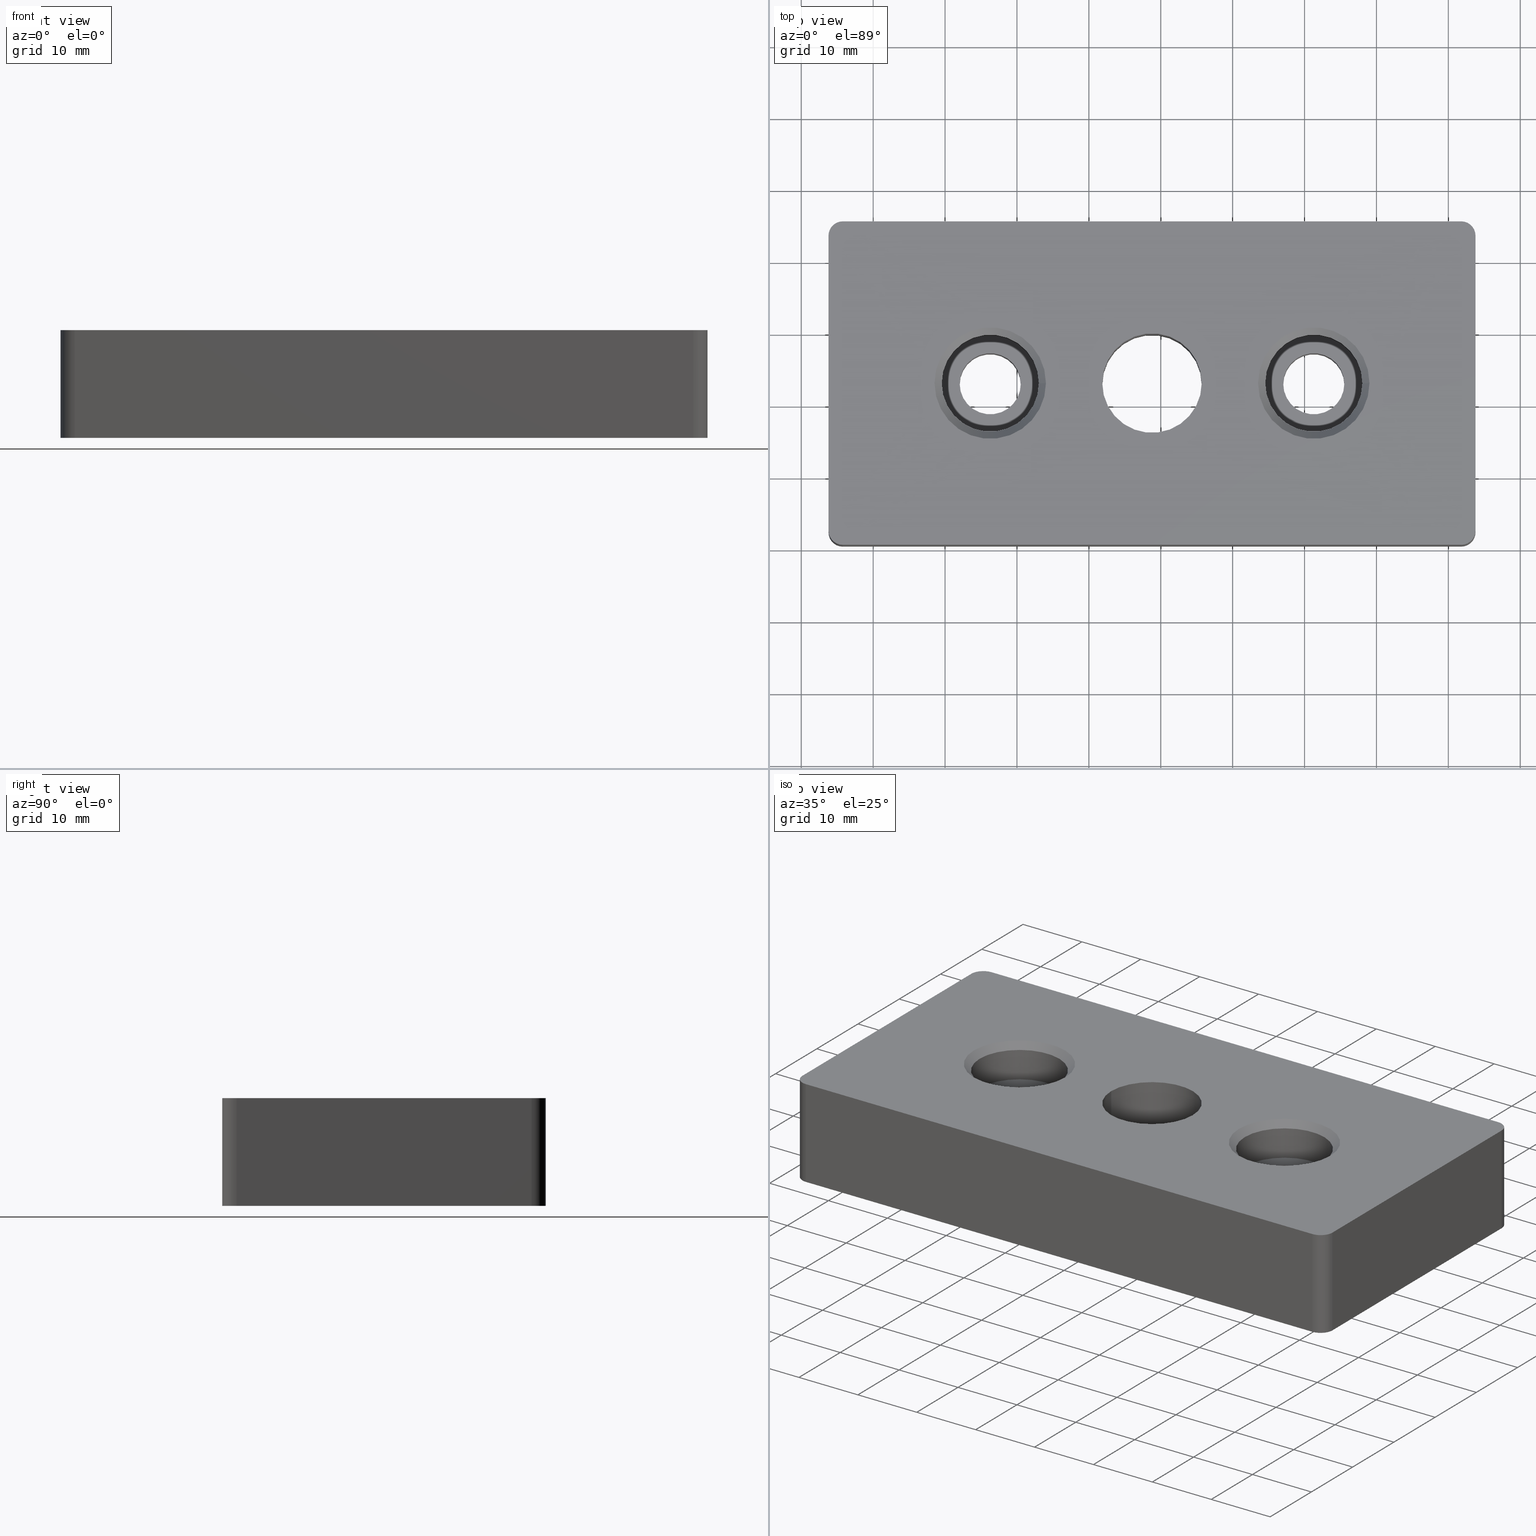
[diagram: canonical four-view strip — front | top / right | iso, engineering-drawing reading convention]
A machine part, canonical four-view strip (front | top / right | iso — engineering-drawing reading convention). The complete STEP part file that produces these views, byte-faithful:
ISO-10303-21;
HEADER;
/* Generated by software containing ST-Developer
 * from STEP Tools, Inc. (www.steptools.com) 
 */

FILE_DESCRIPTION(
/* description */ ('PIASTRA FISS. PIEDI M12 45X90'),
/* implementation_level */ '2;1');

FILE_NAME(
/* name */ 
'Q:\\Catalogo\\2_Accessori Dierre\\Per Download Web e catalogo cartace
o\\CATALOGO PIEDI E SOSTEGNI\\PAGINA 45\\DPSXX0000553.stp',
/* time_stamp */ '2018-11-09T11:38:37+01:00',
/* author */ ('fzagni'),
/* organization */ (''),
/* preprocessor_version */ 'ST-DEVELOPER v16.1',
/* originating_system */ 'Autodesk Inventor 2016',
/* authorisation */ '');

FILE_SCHEMA (('AUTOMOTIVE_DESIGN { 1 0 10303 214 3 1 1 }'));
ENDSEC;

DATA;
#10=MECHANICAL_DESIGN_GEOMETRIC_PRESENTATION_REPRESENTATION('',(#13),#533);
#11=SHAPE_REPRESENTATION_RELATIONSHIP('SRR','None',#542,#12);
#12=ADVANCED_BREP_SHAPE_REPRESENTATION('',(#14),#532);
#13=STYLED_ITEM('',(#552),#14);
#14=MANIFOLD_SOLID_BREP('3710',#309);
#15=CYLINDRICAL_SURFACE('',#321,6.75);
#16=CYLINDRICAL_SURFACE('',#325,6.75);
#17=CYLINDRICAL_SURFACE('',#327,6.9175);
#18=CYLINDRICAL_SURFACE('',#329,2.);
#19=CYLINDRICAL_SURFACE('',#338,2.);
#20=CYLINDRICAL_SURFACE('',#340,2.);
#21=CYLINDRICAL_SURFACE('',#341,2.);
#22=CYLINDRICAL_SURFACE('',#347,4.25);
#23=CYLINDRICAL_SURFACE('',#348,4.25);
#24=LINE('',#457,#40);
#25=LINE('',#461,#41);
#26=LINE('',#465,#42);
#27=LINE('',#468,#43);
#28=LINE('',#487,#44);
#29=LINE('',#490,#45);
#30=LINE('',#493,#46);
#31=LINE('',#494,#47);
#32=LINE('',#497,#48);
#33=LINE('',#501,#49);
#34=LINE('',#505,#50);
#35=LINE('',#512,#51);
#36=LINE('',#513,#52);
#37=LINE('',#515,#53);
#38=LINE('',#518,#54);
#39=LINE('',#519,#55);
#40=VECTOR('',#362,41.);
#41=VECTOR('',#365,86.0000000000001);
#42=VECTOR('',#368,41.0000000000001);
#43=VECTOR('',#371,86.);
#44=VECTOR('',#394,15.);
#45=VECTOR('',#397,15.);
#46=VECTOR('',#400,41.);
#47=VECTOR('',#401,15.);
#48=VECTOR('',#404,86.);
#49=VECTOR('',#407,41.0000000000001);
#50=VECTOR('',#410,86.0000000000001);
#51=VECTOR('',#419,15.);
#52=VECTOR('',#420,15.);
#53=VECTOR('',#423,15.);
#54=VECTOR('',#428,15.);
#55=VECTOR('',#429,15.);
#56=PLANE('',#314);
#57=PLANE('',#331);
#58=PLANE('',#332);
#59=PLANE('',#339);
#60=PLANE('',#342);
#61=PLANE('',#343);
#62=PLANE('',#345);
#63=PLANE('',#349);
#64=FACE_BOUND('',#99,.T.);
#65=FACE_BOUND('',#101,.T.);
#66=FACE_BOUND('',#102,.T.);
#67=FACE_BOUND('',#103,.T.);
#68=FACE_BOUND('',#105,.T.);
#69=FACE_BOUND('',#107,.T.);
#70=FACE_BOUND('',#109,.T.);
#71=FACE_BOUND('',#111,.T.);
#72=FACE_BOUND('',#115,.T.);
#73=FACE_BOUND('',#116,.T.);
#74=FACE_BOUND('',#117,.T.);
#75=FACE_BOUND('',#124,.T.);
#76=FACE_BOUND('',#126,.T.);
#77=FACE_BOUND('',#128,.T.);
#78=FACE_BOUND('',#130,.T.);
#79=FACE_OUTER_BOUND('',#98,.T.);
#80=FACE_OUTER_BOUND('',#100,.T.);
#81=FACE_OUTER_BOUND('',#104,.T.);
#82=FACE_OUTER_BOUND('',#106,.T.);
#83=FACE_OUTER_BOUND('',#108,.T.);
#84=FACE_OUTER_BOUND('',#110,.T.);
#85=FACE_OUTER_BOUND('',#112,.T.);
#86=FACE_OUTER_BOUND('',#113,.T.);
#87=FACE_OUTER_BOUND('',#114,.T.);
#88=FACE_OUTER_BOUND('',#118,.T.);
#89=FACE_OUTER_BOUND('',#119,.T.);
#90=FACE_OUTER_BOUND('',#120,.T.);
#91=FACE_OUTER_BOUND('',#121,.T.);
#92=FACE_OUTER_BOUND('',#122,.T.);
#93=FACE_OUTER_BOUND('',#123,.T.);
#94=FACE_OUTER_BOUND('',#125,.T.);
#95=FACE_OUTER_BOUND('',#127,.T.);
#96=FACE_OUTER_BOUND('',#129,.T.);
#97=FACE_OUTER_BOUND('',#131,.T.);
#98=EDGE_LOOP('',(#216));
#99=EDGE_LOOP('',(#217));
#100=EDGE_LOOP('',(#218,#219,#220,#221,#222,#223,#224,#225));
#101=EDGE_LOOP('',(#226));
#102=EDGE_LOOP('',(#227));
#103=EDGE_LOOP('',(#228));
#104=EDGE_LOOP('',(#229));
#105=EDGE_LOOP('',(#230));
#106=EDGE_LOOP('',(#231));
#107=EDGE_LOOP('',(#232));
#108=EDGE_LOOP('',(#233));
#109=EDGE_LOOP('',(#234));
#110=EDGE_LOOP('',(#235));
#111=EDGE_LOOP('',(#236));
#112=EDGE_LOOP('',(#237,#238,#239,#240));
#113=EDGE_LOOP('',(#241,#242,#243,#244));
#114=EDGE_LOOP('',(#245,#246,#247,#248,#249,#250,#251,#252));
#115=EDGE_LOOP('',(#253));
#116=EDGE_LOOP('',(#254));
#117=EDGE_LOOP('',(#255));
#118=EDGE_LOOP('',(#256,#257,#258,#259));
#119=EDGE_LOOP('',(#260,#261,#262,#263));
#120=EDGE_LOOP('',(#264,#265,#266,#267));
#121=EDGE_LOOP('',(#268,#269,#270,#271));
#122=EDGE_LOOP('',(#272,#273,#274,#275));
#123=EDGE_LOOP('',(#276));
#124=EDGE_LOOP('',(#277));
#125=EDGE_LOOP('',(#278));
#126=EDGE_LOOP('',(#279));
#127=EDGE_LOOP('',(#280));
#128=EDGE_LOOP('',(#281));
#129=EDGE_LOOP('',(#282));
#130=EDGE_LOOP('',(#283));
#131=EDGE_LOOP('',(#284,#285,#286,#287));
#132=CIRCLE('',#312,6.75);
#133=CIRCLE('',#313,7.75);
#134=CIRCLE('',#315,2.);
#135=CIRCLE('',#316,2.);
#136=CIRCLE('',#317,2.);
#137=CIRCLE('',#318,2.);
#138=CIRCLE('',#319,7.75);
#139=CIRCLE('',#320,6.9175);
#140=CIRCLE('',#322,6.75);
#141=CIRCLE('',#324,6.75);
#142=CIRCLE('',#326,6.75);
#143=CIRCLE('',#328,6.9175);
#144=CIRCLE('',#330,2.);
#145=CIRCLE('',#333,2.);
#146=CIRCLE('',#334,2.);
#147=CIRCLE('',#335,2.);
#148=CIRCLE('',#336,4.25);
#149=CIRCLE('',#337,4.25);
#150=CIRCLE('',#344,4.25);
#151=CIRCLE('',#346,4.25);
#152=VERTEX_POINT('',#448);
#153=VERTEX_POINT('',#450);
#154=VERTEX_POINT('',#453);
#155=VERTEX_POINT('',#454);
#156=VERTEX_POINT('',#456);
#157=VERTEX_POINT('',#458);
#158=VERTEX_POINT('',#460);
#159=VERTEX_POINT('',#462);
#160=VERTEX_POINT('',#464);
#161=VERTEX_POINT('',#466);
#162=VERTEX_POINT('',#469);
#163=VERTEX_POINT('',#471);
#164=VERTEX_POINT('',#474);
#165=VERTEX_POINT('',#477);
#166=VERTEX_POINT('',#480);
#167=VERTEX_POINT('',#483);
#168=VERTEX_POINT('',#486);
#169=VERTEX_POINT('',#488);
#170=VERTEX_POINT('',#492);
#171=VERTEX_POINT('',#496);
#172=VERTEX_POINT('',#498);
#173=VERTEX_POINT('',#500);
#174=VERTEX_POINT('',#502);
#175=VERTEX_POINT('',#504);
#176=VERTEX_POINT('',#507);
#177=VERTEX_POINT('',#509);
#178=VERTEX_POINT('',#522);
#179=VERTEX_POINT('',#525);
#180=EDGE_CURVE('',#152,#152,#132,.T.);
#181=EDGE_CURVE('',#153,#153,#133,.T.);
#182=EDGE_CURVE('',#154,#155,#134,.T.);
#183=EDGE_CURVE('',#156,#154,#24,.T.);
#184=EDGE_CURVE('',#157,#156,#135,.T.);
#185=EDGE_CURVE('',#158,#157,#25,.T.);
#186=EDGE_CURVE('',#159,#158,#136,.T.);
#187=EDGE_CURVE('',#160,#159,#26,.T.);
#188=EDGE_CURVE('',#161,#160,#137,.T.);
#189=EDGE_CURVE('',#155,#161,#27,.T.);
#190=EDGE_CURVE('',#162,#162,#138,.T.);
#191=EDGE_CURVE('',#163,#163,#139,.T.);
#192=EDGE_CURVE('',#164,#164,#140,.T.);
#193=EDGE_CURVE('',#165,#165,#141,.T.);
#194=EDGE_CURVE('',#166,#166,#142,.T.);
#195=EDGE_CURVE('',#167,#167,#143,.T.);
#196=EDGE_CURVE('',#155,#168,#28,.T.);
#197=EDGE_CURVE('',#168,#169,#144,.T.);
#198=EDGE_CURVE('',#169,#154,#29,.T.);
#199=EDGE_CURVE('',#170,#169,#30,.T.);
#200=EDGE_CURVE('',#156,#170,#31,.T.);
#201=EDGE_CURVE('',#168,#171,#32,.T.);
#202=EDGE_CURVE('',#172,#171,#145,.T.);
#203=EDGE_CURVE('',#172,#173,#33,.T.);
#204=EDGE_CURVE('',#174,#173,#146,.T.);
#205=EDGE_CURVE('',#174,#175,#34,.T.);
#206=EDGE_CURVE('',#170,#175,#147,.T.);
#207=EDGE_CURVE('',#176,#176,#148,.T.);
#208=EDGE_CURVE('',#177,#177,#149,.T.);
#209=EDGE_CURVE('',#158,#174,#35,.T.);
#210=EDGE_CURVE('',#173,#159,#36,.T.);
#211=EDGE_CURVE('',#175,#157,#37,.T.);
#212=EDGE_CURVE('',#160,#172,#38,.T.);
#213=EDGE_CURVE('',#171,#161,#39,.T.);
#214=EDGE_CURVE('',#178,#178,#150,.T.);
#215=EDGE_CURVE('',#179,#179,#151,.T.);
#216=ORIENTED_EDGE('',*,*,#180,.T.);
#217=ORIENTED_EDGE('',*,*,#181,.T.);
#218=ORIENTED_EDGE('',*,*,#182,.F.);
#219=ORIENTED_EDGE('',*,*,#183,.F.);
#220=ORIENTED_EDGE('',*,*,#184,.F.);
#221=ORIENTED_EDGE('',*,*,#185,.F.);
#222=ORIENTED_EDGE('',*,*,#186,.F.);
#223=ORIENTED_EDGE('',*,*,#187,.F.);
#224=ORIENTED_EDGE('',*,*,#188,.F.);
#225=ORIENTED_EDGE('',*,*,#189,.F.);
#226=ORIENTED_EDGE('',*,*,#190,.F.);
#227=ORIENTED_EDGE('',*,*,#191,.T.);
#228=ORIENTED_EDGE('',*,*,#181,.F.);
#229=ORIENTED_EDGE('',*,*,#192,.F.);
#230=ORIENTED_EDGE('',*,*,#180,.F.);
#231=ORIENTED_EDGE('',*,*,#193,.T.);
#232=ORIENTED_EDGE('',*,*,#190,.T.);
#233=ORIENTED_EDGE('',*,*,#194,.F.);
#234=ORIENTED_EDGE('',*,*,#193,.F.);
#235=ORIENTED_EDGE('',*,*,#195,.F.);
#236=ORIENTED_EDGE('',*,*,#191,.F.);
#237=ORIENTED_EDGE('',*,*,#182,.T.);
#238=ORIENTED_EDGE('',*,*,#196,.T.);
#239=ORIENTED_EDGE('',*,*,#197,.T.);
#240=ORIENTED_EDGE('',*,*,#198,.T.);
#241=ORIENTED_EDGE('',*,*,#198,.F.);
#242=ORIENTED_EDGE('',*,*,#199,.F.);
#243=ORIENTED_EDGE('',*,*,#200,.F.);
#244=ORIENTED_EDGE('',*,*,#183,.T.);
#245=ORIENTED_EDGE('',*,*,#197,.F.);
#246=ORIENTED_EDGE('',*,*,#201,.T.);
#247=ORIENTED_EDGE('',*,*,#202,.F.);
#248=ORIENTED_EDGE('',*,*,#203,.T.);
#249=ORIENTED_EDGE('',*,*,#204,.F.);
#250=ORIENTED_EDGE('',*,*,#205,.T.);
#251=ORIENTED_EDGE('',*,*,#206,.F.);
#252=ORIENTED_EDGE('',*,*,#199,.T.);
#253=ORIENTED_EDGE('',*,*,#195,.T.);
#254=ORIENTED_EDGE('',*,*,#207,.T.);
#255=ORIENTED_EDGE('',*,*,#208,.T.);
#256=ORIENTED_EDGE('',*,*,#186,.T.);
#257=ORIENTED_EDGE('',*,*,#209,.T.);
#258=ORIENTED_EDGE('',*,*,#204,.T.);
#259=ORIENTED_EDGE('',*,*,#210,.T.);
#260=ORIENTED_EDGE('',*,*,#209,.F.);
#261=ORIENTED_EDGE('',*,*,#185,.T.);
#262=ORIENTED_EDGE('',*,*,#211,.F.);
#263=ORIENTED_EDGE('',*,*,#205,.F.);
#264=ORIENTED_EDGE('',*,*,#184,.T.);
#265=ORIENTED_EDGE('',*,*,#200,.T.);
#266=ORIENTED_EDGE('',*,*,#206,.T.);
#267=ORIENTED_EDGE('',*,*,#211,.T.);
#268=ORIENTED_EDGE('',*,*,#188,.T.);
#269=ORIENTED_EDGE('',*,*,#212,.T.);
#270=ORIENTED_EDGE('',*,*,#202,.T.);
#271=ORIENTED_EDGE('',*,*,#213,.T.);
#272=ORIENTED_EDGE('',*,*,#210,.F.);
#273=ORIENTED_EDGE('',*,*,#203,.F.);
#274=ORIENTED_EDGE('',*,*,#212,.F.);
#275=ORIENTED_EDGE('',*,*,#187,.T.);
#276=ORIENTED_EDGE('',*,*,#194,.T.);
#277=ORIENTED_EDGE('',*,*,#214,.F.);
#278=ORIENTED_EDGE('',*,*,#192,.T.);
#279=ORIENTED_EDGE('',*,*,#215,.F.);
#280=ORIENTED_EDGE('',*,*,#214,.T.);
#281=ORIENTED_EDGE('',*,*,#207,.F.);
#282=ORIENTED_EDGE('',*,*,#215,.T.);
#283=ORIENTED_EDGE('',*,*,#208,.F.);
#284=ORIENTED_EDGE('',*,*,#196,.F.);
#285=ORIENTED_EDGE('',*,*,#189,.T.);
#286=ORIENTED_EDGE('',*,*,#213,.F.);
#287=ORIENTED_EDGE('',*,*,#201,.F.);
#288=CONICAL_SURFACE('',#311,7.25,44.9999999999999);
#289=CONICAL_SURFACE('',#323,7.25,45.);
#290=ADVANCED_FACE('',(#79,#64),#288,.F.);
#291=ADVANCED_FACE('',(#80,#65,#66,#67),#56,.T.);
#292=ADVANCED_FACE('',(#81,#68),#15,.F.);
#293=ADVANCED_FACE('',(#82,#69),#289,.F.);
#294=ADVANCED_FACE('',(#83,#70),#16,.F.);
#295=ADVANCED_FACE('',(#84,#71),#17,.F.);
#296=ADVANCED_FACE('',(#85),#18,.T.);
#297=ADVANCED_FACE('',(#86),#57,.T.);
#298=ADVANCED_FACE('',(#87,#72,#73,#74),#58,.F.);
#299=ADVANCED_FACE('',(#88),#19,.T.);
#300=ADVANCED_FACE('',(#89),#59,.T.);
#301=ADVANCED_FACE('',(#90),#20,.T.);
#302=ADVANCED_FACE('',(#91),#21,.T.);
#303=ADVANCED_FACE('',(#92),#60,.T.);
#304=ADVANCED_FACE('',(#93,#75),#61,.F.);
#305=ADVANCED_FACE('',(#94,#76),#62,.F.);
#306=ADVANCED_FACE('',(#95,#77),#22,.F.);
#307=ADVANCED_FACE('',(#96,#78),#23,.F.);
#308=ADVANCED_FACE('',(#97),#63,.T.);
#309=CLOSED_SHELL('',(#290,#291,#292,#293,#294,#295,#296,#297,#298,#299,
#300,#301,#302,#303,#304,#305,#306,#307,#308));
#310=AXIS2_PLACEMENT_3D('placement',#446,#350,#351);
#311=AXIS2_PLACEMENT_3D('',#447,#352,#353);
#312=AXIS2_PLACEMENT_3D('',#449,#354,#355);
#313=AXIS2_PLACEMENT_3D('',#451,#356,#357);
#314=AXIS2_PLACEMENT_3D('',#452,#358,#359);
#315=AXIS2_PLACEMENT_3D('',#455,#360,#361);
#316=AXIS2_PLACEMENT_3D('',#459,#363,#364);
#317=AXIS2_PLACEMENT_3D('',#463,#366,#367);
#318=AXIS2_PLACEMENT_3D('',#467,#369,#370);
#319=AXIS2_PLACEMENT_3D('',#470,#372,#373);
#320=AXIS2_PLACEMENT_3D('',#472,#374,#375);
#321=AXIS2_PLACEMENT_3D('',#473,#376,#377);
#322=AXIS2_PLACEMENT_3D('',#475,#378,#379);
#323=AXIS2_PLACEMENT_3D('',#476,#380,#381);
#324=AXIS2_PLACEMENT_3D('',#478,#382,#383);
#325=AXIS2_PLACEMENT_3D('',#479,#384,#385);
#326=AXIS2_PLACEMENT_3D('',#481,#386,#387);
#327=AXIS2_PLACEMENT_3D('',#482,#388,#389);
#328=AXIS2_PLACEMENT_3D('',#484,#390,#391);
#329=AXIS2_PLACEMENT_3D('',#485,#392,#393);
#330=AXIS2_PLACEMENT_3D('',#489,#395,#396);
#331=AXIS2_PLACEMENT_3D('',#491,#398,#399);
#332=AXIS2_PLACEMENT_3D('',#495,#402,#403);
#333=AXIS2_PLACEMENT_3D('',#499,#405,#406);
#334=AXIS2_PLACEMENT_3D('',#503,#408,#409);
#335=AXIS2_PLACEMENT_3D('',#506,#411,#412);
#336=AXIS2_PLACEMENT_3D('',#508,#413,#414);
#337=AXIS2_PLACEMENT_3D('',#510,#415,#416);
#338=AXIS2_PLACEMENT_3D('',#511,#417,#418);
#339=AXIS2_PLACEMENT_3D('',#514,#421,#422);
#340=AXIS2_PLACEMENT_3D('',#516,#424,#425);
#341=AXIS2_PLACEMENT_3D('',#517,#426,#427);
#342=AXIS2_PLACEMENT_3D('',#520,#430,#431);
#343=AXIS2_PLACEMENT_3D('',#521,#432,#433);
#344=AXIS2_PLACEMENT_3D('',#523,#434,#435);
#345=AXIS2_PLACEMENT_3D('',#524,#436,#437);
#346=AXIS2_PLACEMENT_3D('',#526,#438,#439);
#347=AXIS2_PLACEMENT_3D('',#527,#440,#441);
#348=AXIS2_PLACEMENT_3D('',#528,#442,#443);
#349=AXIS2_PLACEMENT_3D('',#529,#444,#445);
#350=DIRECTION('axis',(0.,0.,1.));
#351=DIRECTION('refdir',(1.,0.,0.));
#352=DIRECTION('center_axis',(0.,0.,1.));
#353=DIRECTION('ref_axis',(-1.,0.,0.));
#354=DIRECTION('center_axis',(0.,0.,-1.));
#355=DIRECTION('ref_axis',(-1.,0.,0.));
#356=DIRECTION('center_axis',(0.,0.,1.));
#357=DIRECTION('ref_axis',(-1.,0.,0.));
#358=DIRECTION('center_axis',(0.,0.,1.));
#359=DIRECTION('ref_axis',(1.,0.,0.));
#360=DIRECTION('center_axis',(0.,0.,-1.));
#361=DIRECTION('ref_axis',(0.707106781186549,-0.707106781186546,0.));
#362=DIRECTION('',(0.,-1.,0.));
#363=DIRECTION('center_axis',(0.,0.,-1.));
#364=DIRECTION('ref_axis',(0.707106781186546,0.707106781186549,0.));
#365=DIRECTION('',(1.,0.,0.));
#366=DIRECTION('center_axis',(0.,0.,-1.));
#367=DIRECTION('ref_axis',(-0.707106781186548,0.707106781186548,0.));
#368=DIRECTION('',(0.,1.,0.));
#369=DIRECTION('center_axis',(0.,0.,-1.));
#370=DIRECTION('ref_axis',(-0.707106781186548,-0.707106781186548,0.));
#371=DIRECTION('',(-1.,0.,0.));
#372=DIRECTION('center_axis',(0.,0.,1.));
#373=DIRECTION('ref_axis',(-1.,0.,0.));
#374=DIRECTION('center_axis',(0.,0.,-1.));
#375=DIRECTION('ref_axis',(1.,0.,0.));
#376=DIRECTION('center_axis',(0.,0.,-1.));
#377=DIRECTION('ref_axis',(-1.,0.,0.));
#378=DIRECTION('center_axis',(0.,0.,1.));
#379=DIRECTION('ref_axis',(-1.,0.,0.));
#380=DIRECTION('center_axis',(0.,0.,1.));
#381=DIRECTION('ref_axis',(-1.,0.,0.));
#382=DIRECTION('center_axis',(0.,0.,-1.));
#383=DIRECTION('ref_axis',(-1.,0.,0.));
#384=DIRECTION('center_axis',(0.,0.,-1.));
#385=DIRECTION('ref_axis',(-1.,0.,0.));
#386=DIRECTION('center_axis',(0.,0.,1.));
#387=DIRECTION('ref_axis',(-1.,0.,0.));
#388=DIRECTION('center_axis',(0.,0.,1.));
#389=DIRECTION('ref_axis',(-1.,-1.28395868406234E-15,0.));
#390=DIRECTION('center_axis',(0.,0.,1.));
#391=DIRECTION('ref_axis',(1.,0.,0.));
#392=DIRECTION('center_axis',(0.,0.,1.));
#393=DIRECTION('ref_axis',(0.707106781186549,-0.707106781186546,0.));
#394=DIRECTION('',(0.,0.,-1.));
#395=DIRECTION('center_axis',(0.,0.,1.));
#396=DIRECTION('ref_axis',(0.707106781186549,-0.707106781186546,0.));
#397=DIRECTION('',(0.,0.,1.));
#398=DIRECTION('center_axis',(1.,0.,0.));
#399=DIRECTION('ref_axis',(0.,0.,-1.));
#400=DIRECTION('',(0.,-1.,0.));
#401=DIRECTION('',(0.,0.,-1.));
#402=DIRECTION('center_axis',(0.,0.,1.));
#403=DIRECTION('ref_axis',(1.,0.,0.));
#404=DIRECTION('',(-1.,0.,0.));
#405=DIRECTION('center_axis',(0.,0.,1.));
#406=DIRECTION('ref_axis',(-0.707106781186548,-0.707106781186548,0.));
#407=DIRECTION('',(0.,1.,0.));
#408=DIRECTION('center_axis',(0.,0.,1.));
#409=DIRECTION('ref_axis',(-0.707106781186548,0.707106781186548,0.));
#410=DIRECTION('',(1.,0.,0.));
#411=DIRECTION('center_axis',(0.,0.,1.));
#412=DIRECTION('ref_axis',(0.707106781186546,0.707106781186549,0.));
#413=DIRECTION('center_axis',(0.,0.,1.));
#414=DIRECTION('ref_axis',(-1.,0.,0.));
#415=DIRECTION('center_axis',(0.,0.,1.));
#416=DIRECTION('ref_axis',(-1.,0.,0.));
#417=DIRECTION('center_axis',(0.,0.,1.));
#418=DIRECTION('ref_axis',(-0.707106781186548,0.707106781186548,0.));
#419=DIRECTION('',(0.,0.,-1.));
#420=DIRECTION('',(0.,0.,1.));
#421=DIRECTION('center_axis',(0.,1.,0.));
#422=DIRECTION('ref_axis',(0.,0.,1.));
#423=DIRECTION('',(0.,0.,1.));
#424=DIRECTION('center_axis',(0.,0.,1.));
#425=DIRECTION('ref_axis',(0.707106781186546,0.707106781186549,0.));
#426=DIRECTION('center_axis',(0.,0.,1.));
#427=DIRECTION('ref_axis',(-0.707106781186548,-0.707106781186548,0.));
#428=DIRECTION('',(0.,0.,-1.));
#429=DIRECTION('',(0.,0.,1.));
#430=DIRECTION('center_axis',(-1.,0.,0.));
#431=DIRECTION('ref_axis',(0.,0.,1.));
#432=DIRECTION('center_axis',(0.,0.,-1.));
#433=DIRECTION('ref_axis',(-1.,0.,0.));
#434=DIRECTION('center_axis',(0.,0.,1.));
#435=DIRECTION('ref_axis',(-1.,0.,0.));
#436=DIRECTION('center_axis',(0.,0.,-1.));
#437=DIRECTION('ref_axis',(-1.,0.,0.));
#438=DIRECTION('center_axis',(0.,0.,1.));
#439=DIRECTION('ref_axis',(-1.,0.,0.));
#440=DIRECTION('center_axis',(0.,0.,-1.));
#441=DIRECTION('ref_axis',(-1.,0.,0.));
#442=DIRECTION('center_axis',(0.,0.,-1.));
#443=DIRECTION('ref_axis',(-1.,0.,0.));
#444=DIRECTION('center_axis',(0.,-1.,0.));
#445=DIRECTION('ref_axis',(0.,0.,-1.));
#446=CARTESIAN_POINT('',(0.,0.,0.));
#447=CARTESIAN_POINT('Origin',(51.2824833985414,13.0678536302736,14.5));
#448=CARTESIAN_POINT('',(58.0324833985414,13.0678536302736,14.));
#449=CARTESIAN_POINT('Origin',(51.2824833985414,13.0678536302736,14.));
#450=CARTESIAN_POINT('',(59.0324833985414,13.0678536302736,15.));
#451=CARTESIAN_POINT('Origin',(51.2824833985414,13.0678536302736,15.));
#452=CARTESIAN_POINT('Origin',(28.7824833985414,13.0678536302736,15.));
#453=CARTESIAN_POINT('',(73.7824833985415,-7.43214636972642,15.));
#454=CARTESIAN_POINT('',(71.7824833985415,-9.43214636972642,15.));
#455=CARTESIAN_POINT('Origin',(71.7824833985415,-7.43214636972642,15.));
#456=CARTESIAN_POINT('',(73.7824833985415,33.5678536302736,15.));
#457=CARTESIAN_POINT('',(73.7824833985415,33.5678536302736,15.));
#458=CARTESIAN_POINT('',(71.7824833985415,35.5678536302736,15.));
#459=CARTESIAN_POINT('Origin',(71.7824833985415,33.5678536302736,15.));
#460=CARTESIAN_POINT('',(-14.2175166014586,35.5678536302736,15.));
#461=CARTESIAN_POINT('',(-14.2175166014586,35.5678536302736,15.));
#462=CARTESIAN_POINT('',(-16.2175166014586,33.5678536302736,15.));
#463=CARTESIAN_POINT('Origin',(-14.2175166014586,33.5678536302736,15.));
#464=CARTESIAN_POINT('',(-16.2175166014586,-7.43214636972644,15.));
#465=CARTESIAN_POINT('',(-16.2175166014586,-7.43214636972644,15.));
#466=CARTESIAN_POINT('',(-14.2175166014585,-9.43214636972644,15.));
#467=CARTESIAN_POINT('Origin',(-14.2175166014586,-7.43214636972644,15.));
#468=CARTESIAN_POINT('',(71.7824833985415,-9.43214636972642,15.));
#469=CARTESIAN_POINT('',(14.0324833985414,13.0678536302736,15.));
#470=CARTESIAN_POINT('Origin',(6.28248339854144,13.0678536302736,15.));
#471=CARTESIAN_POINT('',(35.6999833985414,13.0678536302736,15.));
#472=CARTESIAN_POINT('Origin',(28.7824833985415,13.0678536302736,15.));
#473=CARTESIAN_POINT('Origin',(51.2824833985414,13.0678536302736,15.));
#474=CARTESIAN_POINT('',(58.0324833985414,13.0678536302736,9.5));
#475=CARTESIAN_POINT('Origin',(51.2824833985414,13.0678536302736,9.5));
#476=CARTESIAN_POINT('Origin',(6.28248339854144,13.0678536302736,14.5));
#477=CARTESIAN_POINT('',(13.0324833985414,13.0678536302736,14.));
#478=CARTESIAN_POINT('Origin',(6.28248339854144,13.0678536302736,14.));
#479=CARTESIAN_POINT('Origin',(6.28248339854144,13.0678536302736,15.));
#480=CARTESIAN_POINT('',(13.0324833985414,13.0678536302736,9.5));
#481=CARTESIAN_POINT('Origin',(6.28248339854144,13.0678536302736,9.5));
#482=CARTESIAN_POINT('Origin',(28.7824833985415,13.0678536302736,7.50000000000001));
#483=CARTESIAN_POINT('',(21.8649833985415,13.0678536302736,0.));
#484=CARTESIAN_POINT('Origin',(28.7824833985415,13.0678536302736,0.));
#485=CARTESIAN_POINT('Origin',(71.7824833985415,-7.43214636972642,0.));
#486=CARTESIAN_POINT('',(71.7824833985415,-9.43214636972642,0.));
#487=CARTESIAN_POINT('',(71.7824833985415,-9.43214636972642,15.));
#488=CARTESIAN_POINT('',(73.7824833985415,-7.43214636972642,0.));
#489=CARTESIAN_POINT('Origin',(71.7824833985415,-7.43214636972642,0.));
#490=CARTESIAN_POINT('',(73.7824833985415,-7.43214636972642,0.));
#491=CARTESIAN_POINT('Origin',(73.7824833985415,35.5678536302736,0.));
#492=CARTESIAN_POINT('',(73.7824833985415,33.5678536302736,0.));
#493=CARTESIAN_POINT('',(73.7824833985415,33.5678536302736,0.));
#494=CARTESIAN_POINT('',(73.7824833985415,33.5678536302736,15.));
#495=CARTESIAN_POINT('Origin',(28.7824833985415,13.0678536302736,0.));
#496=CARTESIAN_POINT('',(-14.2175166014585,-9.43214636972644,0.));
#497=CARTESIAN_POINT('',(71.7824833985415,-9.43214636972642,0.));
#498=CARTESIAN_POINT('',(-16.2175166014586,-7.43214636972644,0.));
#499=CARTESIAN_POINT('Origin',(-14.2175166014586,-7.43214636972644,0.));
#500=CARTESIAN_POINT('',(-16.2175166014586,33.5678536302736,0.));
#501=CARTESIAN_POINT('',(-16.2175166014586,-7.43214636972644,0.));
#502=CARTESIAN_POINT('',(-14.2175166014586,35.5678536302736,0.));
#503=CARTESIAN_POINT('Origin',(-14.2175166014586,33.5678536302736,0.));
#504=CARTESIAN_POINT('',(71.7824833985415,35.5678536302736,0.));
#505=CARTESIAN_POINT('',(-14.2175166014586,35.5678536302736,0.));
#506=CARTESIAN_POINT('Origin',(71.7824833985415,33.5678536302736,0.));
#507=CARTESIAN_POINT('',(10.5324833985414,13.0678536302736,0.));
#508=CARTESIAN_POINT('Origin',(6.28248339854144,13.0678536302736,0.));
#509=CARTESIAN_POINT('',(55.5324833985414,13.0678536302736,0.));
#510=CARTESIAN_POINT('Origin',(51.2824833985414,13.0678536302736,0.));
#511=CARTESIAN_POINT('Origin',(-14.2175166014586,33.5678536302736,0.));
#512=CARTESIAN_POINT('',(-14.2175166014586,35.5678536302736,15.));
#513=CARTESIAN_POINT('',(-16.2175166014586,33.5678536302736,0.));
#514=CARTESIAN_POINT('Origin',(-16.2175166014586,35.5678536302736,0.));
#515=CARTESIAN_POINT('',(71.7824833985415,35.5678536302736,0.));
#516=CARTESIAN_POINT('Origin',(71.7824833985415,33.5678536302736,0.));
#517=CARTESIAN_POINT('Origin',(-14.2175166014586,-7.43214636972644,0.));
#518=CARTESIAN_POINT('',(-16.2175166014586,-7.43214636972644,15.));
#519=CARTESIAN_POINT('',(-14.2175166014586,-9.43214636972644,0.));
#520=CARTESIAN_POINT('Origin',(-16.2175166014586,-9.43214636972644,0.));
#521=CARTESIAN_POINT('Origin',(6.28248339854144,13.0678536302736,9.5));
#522=CARTESIAN_POINT('',(10.5324833985414,13.0678536302736,9.5));
#523=CARTESIAN_POINT('Origin',(6.28248339854144,13.0678536302736,9.5));
#524=CARTESIAN_POINT('Origin',(51.2824833985414,13.0678536302736,9.5));
#525=CARTESIAN_POINT('',(55.5324833985414,13.0678536302736,9.5));
#526=CARTESIAN_POINT('Origin',(51.2824833985414,13.0678536302736,9.5));
#527=CARTESIAN_POINT('Origin',(6.28248339854144,13.0678536302736,15.));
#528=CARTESIAN_POINT('Origin',(51.2824833985414,13.0678536302736,15.));
#529=CARTESIAN_POINT('Origin',(73.7824833985415,-9.43214636972642,0.));
#530=UNCERTAINTY_MEASURE_WITH_UNIT(LENGTH_MEASURE(0.01),#534,
'DISTANCE_ACCURACY_VALUE',
'Maximum model space distance between geometric entities at asserted c
onnectivities');
#531=UNCERTAINTY_MEASURE_WITH_UNIT(LENGTH_MEASURE(1.E-6),#534,
'DISTANCE_ACCURACY_VALUE',
'Maximum model space distance between geometric entities at asserted c
onnectivities');
#532=(
GEOMETRIC_REPRESENTATION_CONTEXT(3)
GLOBAL_UNCERTAINTY_ASSIGNED_CONTEXT((#530))
GLOBAL_UNIT_ASSIGNED_CONTEXT((#534,#537,#535))
REPRESENTATION_CONTEXT('','3D')
);
#533=(
GEOMETRIC_REPRESENTATION_CONTEXT(3)
GLOBAL_UNCERTAINTY_ASSIGNED_CONTEXT((#531))
GLOBAL_UNIT_ASSIGNED_CONTEXT((#534,#537,#535))
REPRESENTATION_CONTEXT('','3D')
);
#534=(
LENGTH_UNIT()
NAMED_UNIT(*)
SI_UNIT(.MILLI.,.METRE.)
);
#535=(
NAMED_UNIT(*)
SI_UNIT($,.STERADIAN.)
SOLID_ANGLE_UNIT()
);
#536=DIMENSIONAL_EXPONENTS(0.,0.,0.,0.,0.,0.,0.);
#537=(
CONVERSION_BASED_UNIT('degree',#539)
NAMED_UNIT(#536)
PLANE_ANGLE_UNIT()
);
#538=(
NAMED_UNIT(*)
PLANE_ANGLE_UNIT()
SI_UNIT($,.RADIAN.)
);
#539=PLANE_ANGLE_MEASURE_WITH_UNIT(PLANE_ANGLE_MEASURE(0.01745329252),#538);
#540=SHAPE_DEFINITION_REPRESENTATION(#541,#542);
#541=PRODUCT_DEFINITION_SHAPE('',$,#544);
#542=SHAPE_REPRESENTATION('',(#310),#532);
#543=PRODUCT_DEFINITION_CONTEXT('part definition',#548,'design');
#544=PRODUCT_DEFINITION('440000003498','440000003498',#545,#543);
#545=PRODUCT_DEFINITION_FORMATION('','A',#550);
#546=PRODUCT_RELATED_PRODUCT_CATEGORY('440000003498','440000003498',(#550));
#547=APPLICATION_PROTOCOL_DEFINITION('international standard',
'automotive_design',2009,#548);
#548=APPLICATION_CONTEXT(
'Core Data for Automotive Mechanical Design Process');
#549=PRODUCT_CONTEXT('part definition',#548,'mechanical');
#550=PRODUCT('440000003498','440000003498',$,(#549));
#551=PRESENTATION_STYLE_ASSIGNMENT((#553));
#552=PRESENTATION_STYLE_ASSIGNMENT((#554));
#553=SURFACE_STYLE_USAGE(.BOTH.,#555);
#554=SURFACE_STYLE_USAGE(.BOTH.,#556);
#555=SURFACE_SIDE_STYLE('',(#557));
#556=SURFACE_SIDE_STYLE('',(#558));
#557=SURFACE_STYLE_FILL_AREA(#559);
#558=SURFACE_STYLE_FILL_AREA(#560);
#559=FILL_AREA_STYLE('',(#561));
#560=FILL_AREA_STYLE('',(#562));
#561=FILL_AREA_STYLE_COLOUR('',#563);
#562=FILL_AREA_STYLE_COLOUR('',#564);
#563=COLOUR_RGB('',0.749019607843137,0.749019607843137,0.749019607843137);
#564=COLOUR_RGB('',0.847058823529412,0.83921568627451,0.83921568627451);
ENDSEC;
END-ISO-10303-21;
